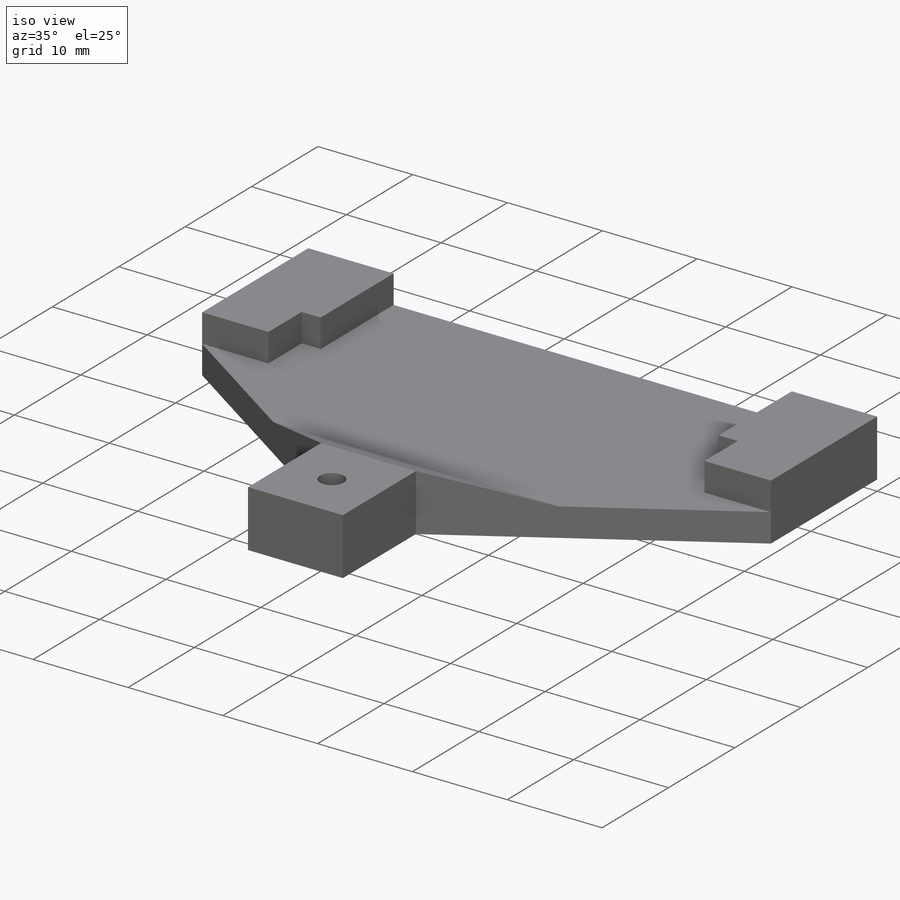
[diagram: iso view]
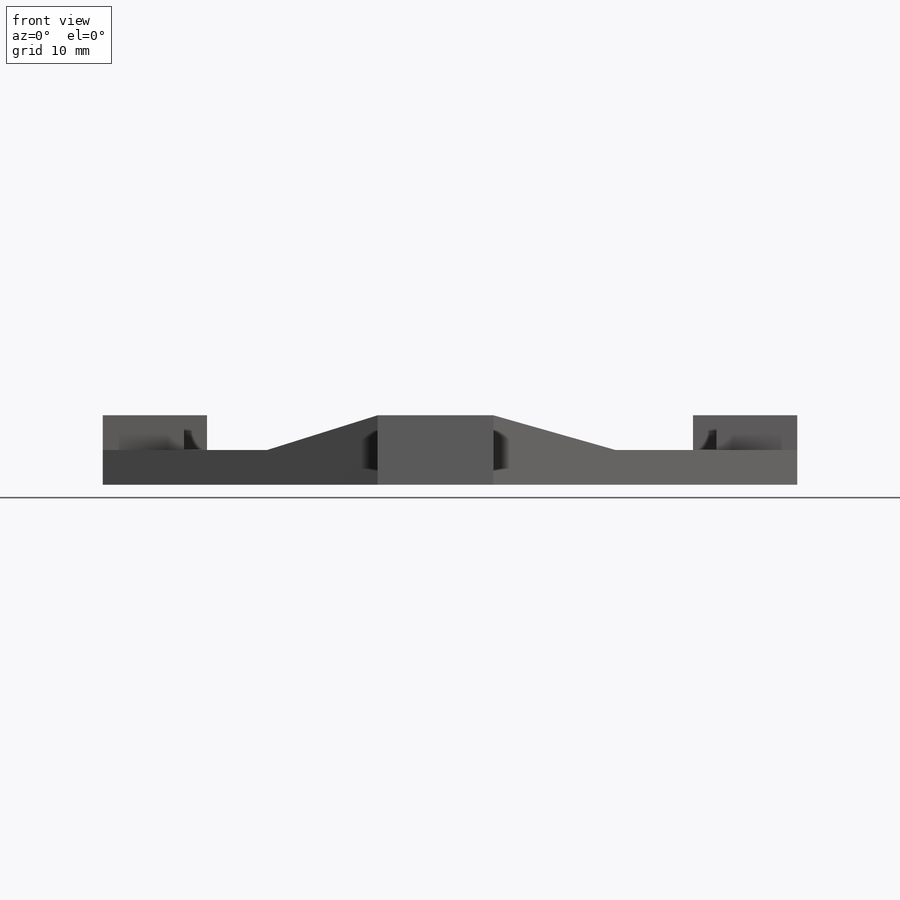
[diagram: front view]
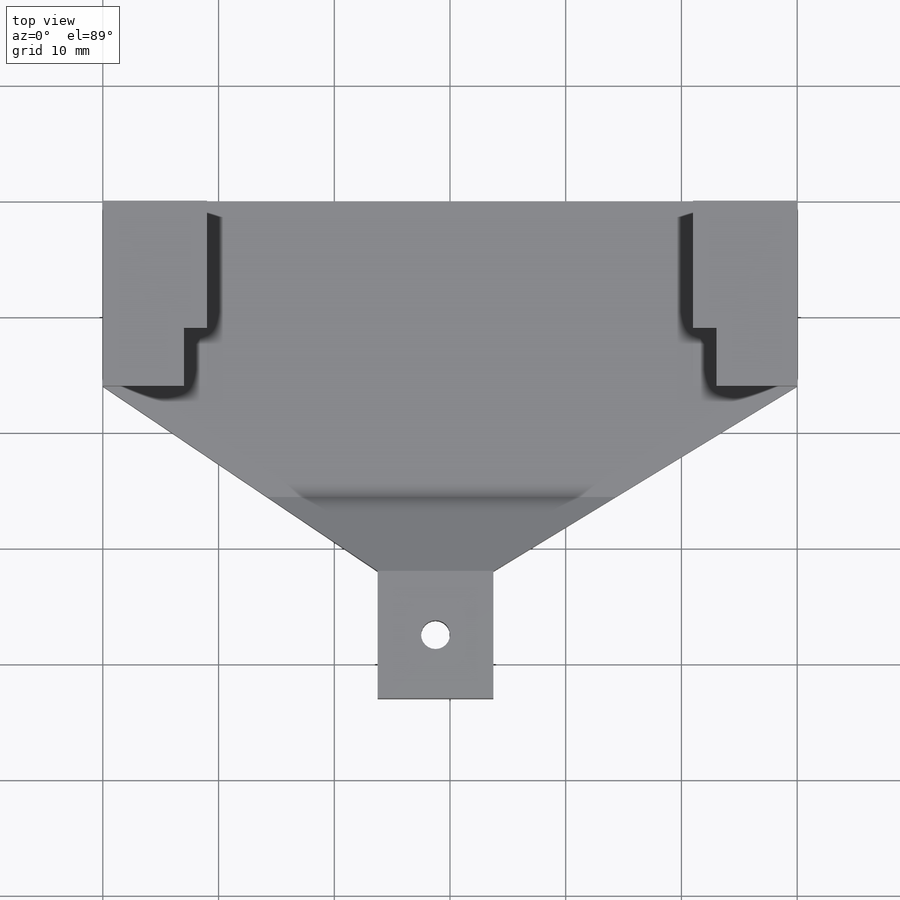
[diagram: top view]
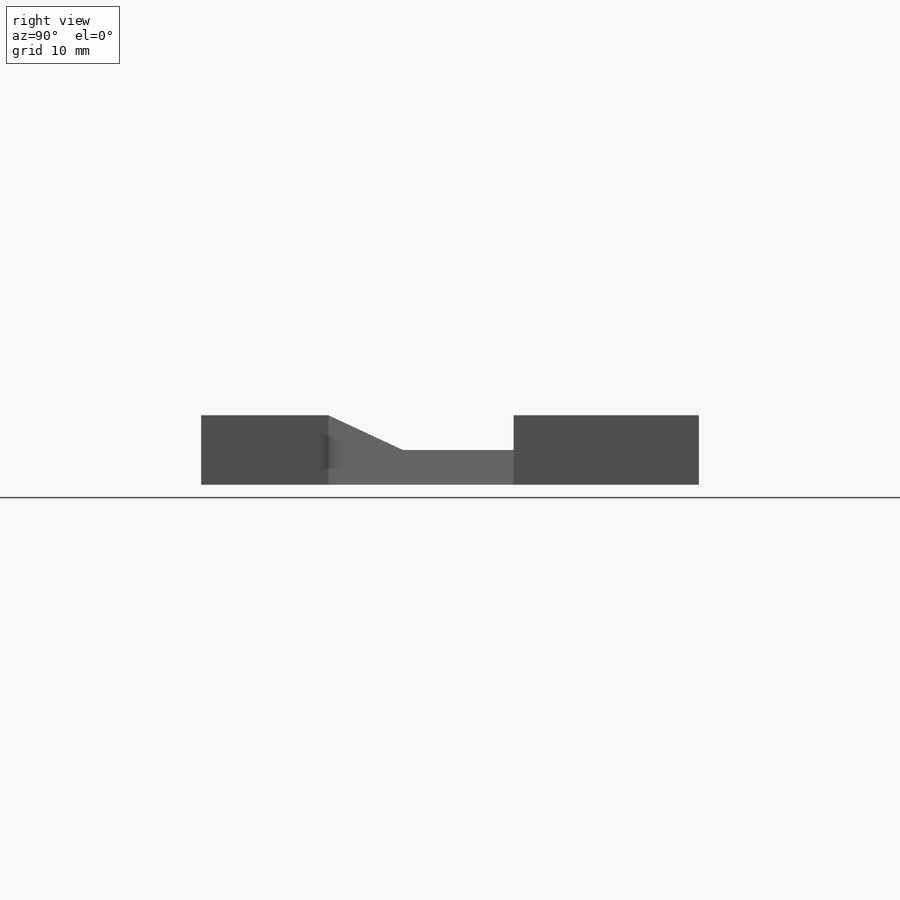
[diagram: right view]
SOLIDWORKS PART (.sldprt)
format: sldprt  version: not decoded by parser v0  size: 243,200 bytes
history: native  units: mm
features: sketch x6, cut_extrude x5, plane x3, material x1, extrude x1, chamfer x1 (+10 scaffold rows collapsed)
feature tree (27):
  scaffold x10  (default folders/planes/origin — collapsed)
  material  "Matériau <non spécifié>"
  plane  "Plan de face"
  plane  "Plan de dessus"
  plane  "Plan de droite"
  sketch  "Esquisse1"  dims[D1=6.0mm D2=60.0mm]
  extrude  "Boss.-Extru.1"  Depth=60mm
  sketch  "Esquisse2"  dims[c1.D6=2.5mm c1.D7=2.5mm c1.D1=48.25mm c1.D2=3.0mm c1.D3=3.0mm c1.D4=6.0mm c1.D5=5.75mm c2.D6=4.5mm]
  cut_extrude  "Enlèv. mat.-Extru.1"  Depth=10mm
  sketch  "Esquisse3"  dims[D1=2.5mm D2=31.25mm D3=37.5mm]
  cut_extrude  "Enlèv. mat.-Extru.2"  Depth=15mm
  sketch  "Esquisse4"  dims[D1=9.0mm D2=9.0mm D3=16.0mm D4=16.0mm D5=17.0mm D6=32.0mm D7=23.75mm D8=26.25mm D9=2.0mm D10=2.0mm D11=5.0mm]
  cut_extrude  "Enlèv. mat.-Extru.3"  Depth=3mm
  sketch  "Esquisse5"
  cut_extrude  "Enlèv. mat.-Extru.4"  Depth=52mm
  chamfer  "Chanfrein1"  Distance=3mm Angle=65deg
  sketch  "Esquisse6"  dims[D1=2.0mm D2=2.0mm D3=5.0mm D4=5.0mm]
  cut_extrude  "Enlèv. mat.-Extru.16"  Depth=2.99mm
decode coverage: 12 of 13 modeling features carry decoded parameters
note: suppression state not decoded; provenance and decode notes live in map.json
